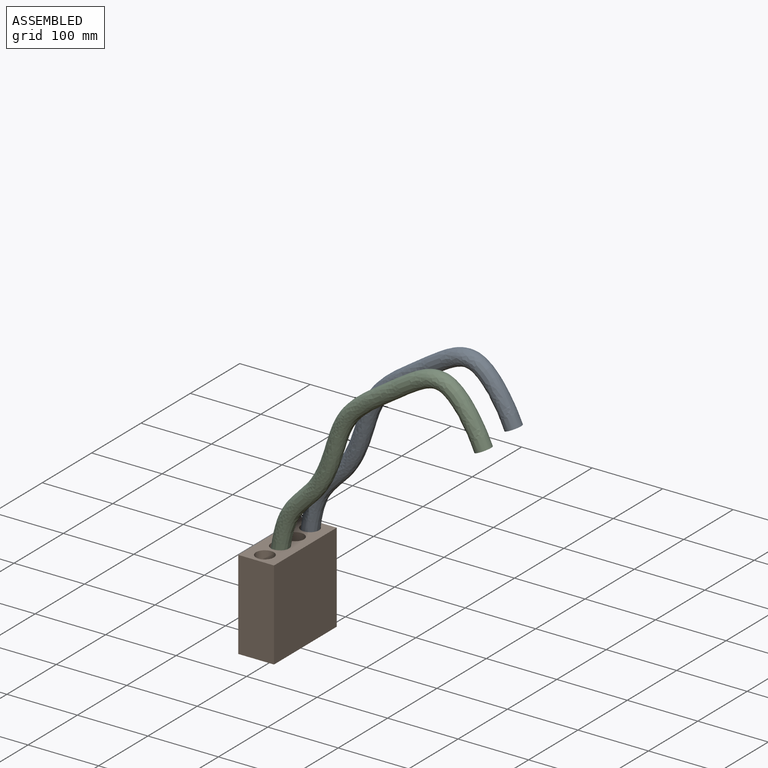
[diagram: assembled view]
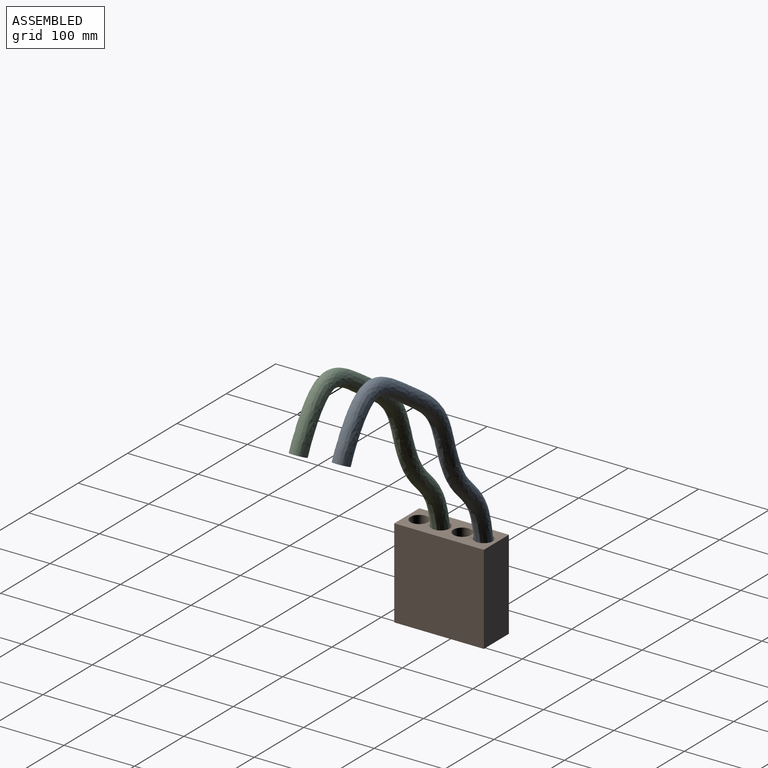
[diagram: assembled view, second angle]
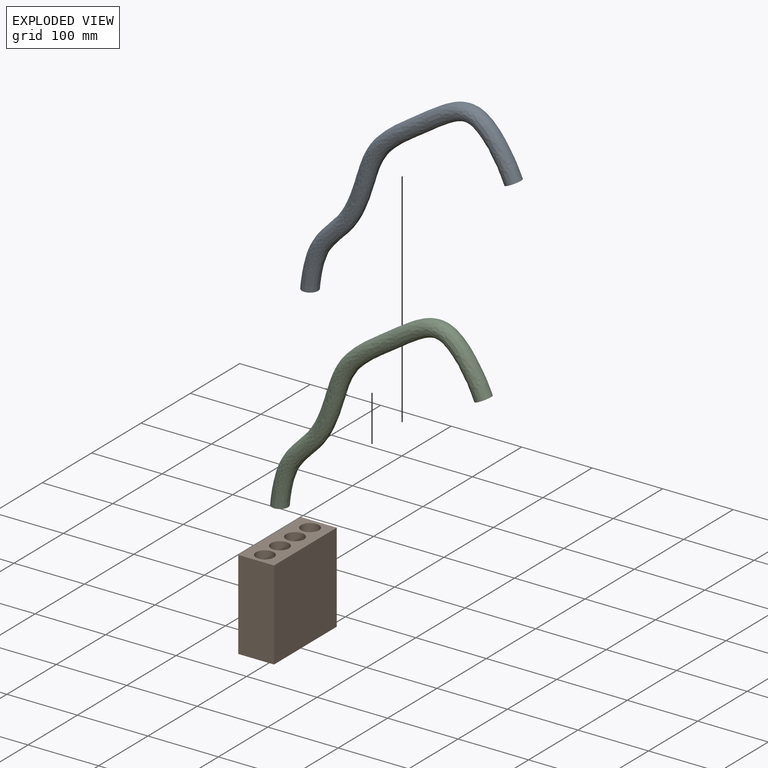
[diagram: exploded view]
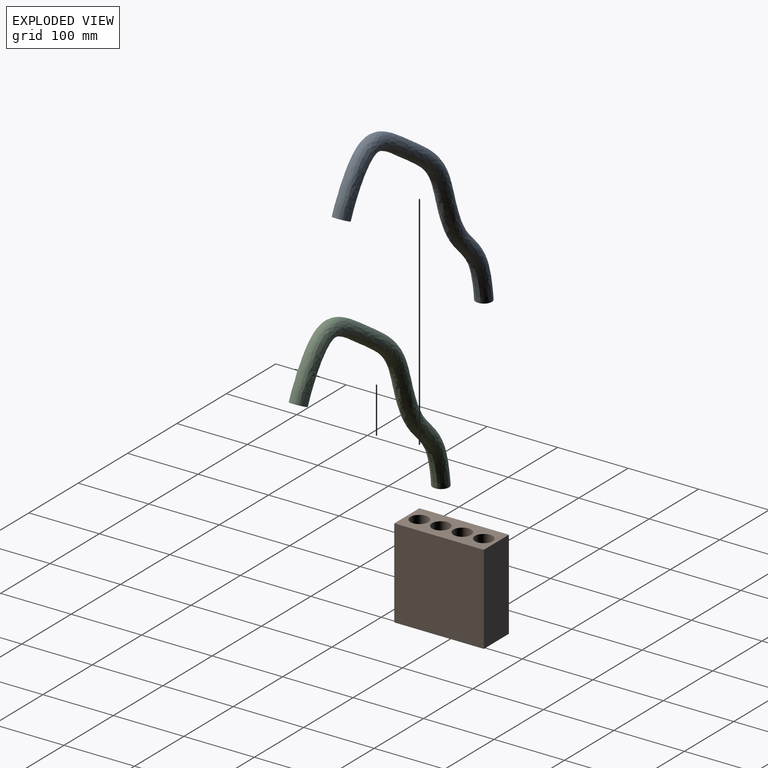
[diagram: exploded view, second angle]
ASSEMBLY  parts=3 mates=2
PART A: 3 faces, bbox 373.9x45.7x185.6 mm
  f0: plane 22.86x22.86mm, normal (0,0,-1), area 410.4mm2, adj f2
  f1: plane 22.86x20.74mm, normal (-0.42,0,-0.91), area 410.4mm2, adj f2
  f2: bspline ~373.89x185.6mm, area 34750.1mm2, adj f0,f1
PART B: 14 faces, bbox 50.8x127x127 mm
  f0: plane 127x50.8mm, normal (0,0,-1), area 6451.6mm2, adj f1,f3,f4,f5
  f1: plane 127x50.8mm, normal (0,1,0), area 6451.6mm2, adj f0,f2,f4,f5
  f2: plane 127x50.8mm, normal (0,0,1), area 4424.8mm2, adj f1,f3,f4,f5,f6,f8,f10,f12
  f3: plane 127x50.8mm, normal (0,-1,0), area 6451.6mm2, adj f0,f2,f4,f5
  f4: plane 127x127mm, normal (1,0,0), area 16129mm2, adj f0,f1,f2,f3
  f5: plane 127x127mm, normal (-1,0,0), area 16129mm2, adj f0,f1,f2,f3
  f6: cylinder r=12.7mm len=25.4mm, axis (0,0,1), area 2026.8mm2, adj f2,f7
  f7: plane 25.4x25.4mm, normal (0,0,1), area 506.7mm2, adj f6
  f8: cylinder r=12.7mm len=25.4mm, axis (0,0,1), area 2026.8mm2, adj f2,f9
  f9: plane 25.4x25.4mm, normal (0,0,1), area 506.7mm2, adj f8
  f10: cylinder r=12.7mm len=25.4mm, axis (0,0,1), area 2026.8mm2, adj f2,f11
  f11: plane 25.4x25.4mm, normal (0,0,1), area 506.7mm2, adj f10
  f12: cylinder r=12.7mm len=25.4mm, axis (0,0,1), area 2026.8mm2, adj f2,f13
  f13: plane 25.4x25.4mm, normal (0,0,1), area 506.7mm2, adj f12
PART C: same geometry as A
PLACE A rot(axis=(0,-1,0),24.8deg) t=(280.95,39.89,268.06)mm
PLACE B t=(-33.37,-5.83,-0.66)mm fixed
PLACE C rot(axis=(0,-1,0),24.8deg) t=(280.95,-21.07,263.49)mm
MATE slider C.f1 <-> B.f10  axis (0,0,-1) through (-7.97,-21.07,50.14)mm
MATE slider A.f1 <-> B.f6  axis (0,0,-1) through (-7.97,39.89,54.71)mm
